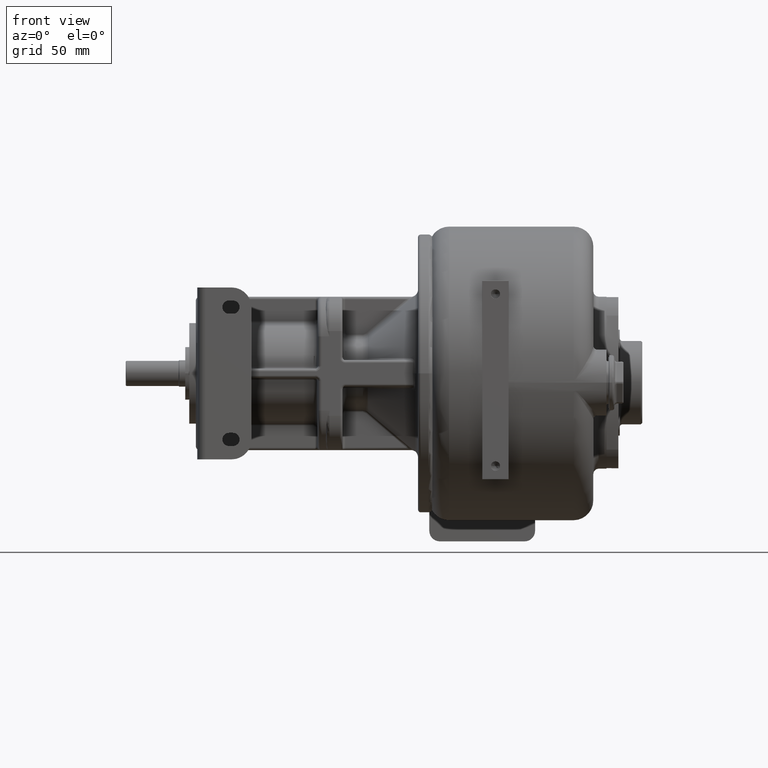
[diagram: clean part render]
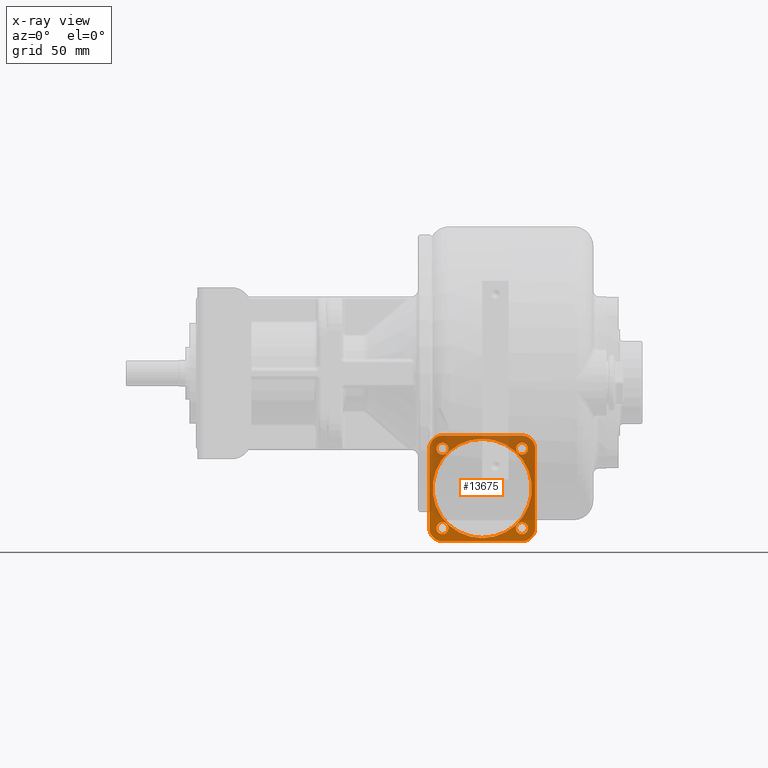
[diagram: x-ray — body ghosted, one internal face saturated and labeled with its STEP entity id]
A machine part, front view, then the same camera in x-ray: the body is ghosted and one INTERNAL B-rep face — a face not visible from any outside direction — is saturated and labeled: STEP entity #13675.
In plain terms, the highlighted planar face has unit normal (0, 1, 0).
Its self-contained STEP definition (entity closure, byte-faithful):
#137=CARTESIAN_POINT('',(2.E1,2.92E2,-5.7E1));
#138=DIRECTION('',(0.E0,1.E0,0.E0));
#139=DIRECTION('',(0.E0,0.E0,1.E0));
#140=AXIS2_PLACEMENT_3D('',#137,#138,#139);
#142=DIRECTION('',(1.E0,0.E0,0.E0));
#143=VECTOR('',#142,6.E1);
#144=CARTESIAN_POINT('',(-4.E1,2.92E2,-4.7E1));
#145=LINE('',#144,#143);
#146=CARTESIAN_POINT('',(-4.E1,2.92E2,-5.7E1));
#147=DIRECTION('',(0.E0,1.E0,0.E0));
#148=DIRECTION('',(-1.E0,0.E0,0.E0));
#149=AXIS2_PLACEMENT_3D('',#146,#147,#148);
#151=DIRECTION('',(0.E0,0.E0,1.E0));
#152=VECTOR('',#151,6.E1);
#153=CARTESIAN_POINT('',(-5.E1,2.92E2,-1.17E2));
#154=LINE('',#153,#152);
#155=CARTESIAN_POINT('',(-4.E1,2.92E2,-1.17E2));
#156=DIRECTION('',(0.E0,1.E0,0.E0));
#157=DIRECTION('',(0.E0,0.E0,-1.E0));
#158=AXIS2_PLACEMENT_3D('',#155,#156,#157);
#160=DIRECTION('',(-1.E0,0.E0,0.E0));
#161=VECTOR('',#160,6.E1);
#162=CARTESIAN_POINT('',(2.E1,2.92E2,-1.27E2));
#163=LINE('',#162,#161);
#164=CARTESIAN_POINT('',(2.E1,2.92E2,-1.17E2));
#165=DIRECTION('',(0.E0,1.E0,0.E0));
#166=DIRECTION('',(1.E0,0.E0,0.E0));
#167=AXIS2_PLACEMENT_3D('',#164,#165,#166);
#169=DIRECTION('',(0.E0,0.E0,-1.E0));
#170=VECTOR('',#169,6.E1);
#171=CARTESIAN_POINT('',(3.E1,2.92E2,-5.7E1));
#172=LINE('',#171,#170);
#173=CARTESIAN_POINT('',(-4.005203820043E1,2.92E2,-5.694796179957E1));
#174=DIRECTION('',(0.E0,-1.E0,0.E0));
#175=DIRECTION('',(1.E0,0.E0,0.E0));
#176=AXIS2_PLACEMENT_3D('',#173,#174,#175);
#178=CARTESIAN_POINT('',(-4.005203820043E1,2.92E2,-5.694796179957E1));
#179=DIRECTION('',(0.E0,-1.E0,0.E0));
#180=DIRECTION('',(-1.E0,0.E0,0.E0));
#181=AXIS2_PLACEMENT_3D('',#178,#179,#180);
#183=CARTESIAN_POINT('',(-4.005203820043E1,2.92E2,-1.170520382004E2));
#184=DIRECTION('',(0.E0,-1.E0,0.E0));
#185=DIRECTION('',(0.E0,0.E0,1.E0));
#186=AXIS2_PLACEMENT_3D('',#183,#184,#185);
#188=CARTESIAN_POINT('',(-4.005203820043E1,2.92E2,-1.170520382004E2));
#189=DIRECTION('',(0.E0,-1.E0,0.E0));
#190=DIRECTION('',(0.E0,0.E0,-1.E0));
#191=AXIS2_PLACEMENT_3D('',#188,#189,#190);
#193=CARTESIAN_POINT('',(2.005203820043E1,2.92E2,-1.170520382004E2));
#194=DIRECTION('',(0.E0,-1.E0,0.E0));
#195=DIRECTION('',(-1.E0,0.E0,0.E0));
#196=AXIS2_PLACEMENT_3D('',#193,#194,#195);
#198=CARTESIAN_POINT('',(2.005203820043E1,2.92E2,-1.170520382004E2));
#199=DIRECTION('',(0.E0,-1.E0,0.E0));
#200=DIRECTION('',(1.E0,0.E0,0.E0));
#201=AXIS2_PLACEMENT_3D('',#198,#199,#200);
#203=CARTESIAN_POINT('',(2.005203820043E1,2.92E2,-5.694796179957E1));
#204=DIRECTION('',(0.E0,-1.E0,0.E0));
#205=DIRECTION('',(0.E0,0.E0,-1.E0));
#206=AXIS2_PLACEMENT_3D('',#203,#204,#205);
#208=CARTESIAN_POINT('',(2.005203820043E1,2.92E2,-5.694796179957E1));
#209=DIRECTION('',(0.E0,-1.E0,0.E0));
#210=DIRECTION('',(0.E0,0.E0,1.E0));
#211=AXIS2_PLACEMENT_3D('',#208,#209,#210);
#213=CARTESIAN_POINT('',(-1.E1,2.92E2,-8.7E1));
#214=DIRECTION('',(0.E0,-1.E0,0.E0));
#215=DIRECTION('',(0.E0,0.E0,1.E0));
#216=AXIS2_PLACEMENT_3D('',#213,#214,#215);
#218=CARTESIAN_POINT('',(-1.E1,2.92E2,-8.7E1));
#219=DIRECTION('',(0.E0,-1.E0,0.E0));
#220=DIRECTION('',(0.E0,0.E0,-1.E0));
#221=AXIS2_PLACEMENT_3D('',#218,#219,#220);
#12553=CARTESIAN_POINT('',(2.E1,2.92E2,-4.7E1));
#12554=CARTESIAN_POINT('',(3.E1,2.92E2,-5.7E1));
#12555=VERTEX_POINT('',#12553);
#12556=VERTEX_POINT('',#12554);
#12557=CARTESIAN_POINT('',(-5.E1,2.92E2,-5.7E1));
#12558=CARTESIAN_POINT('',(-4.E1,2.92E2,-4.7E1));
#12559=VERTEX_POINT('',#12557);
#12560=VERTEX_POINT('',#12558);
#12561=CARTESIAN_POINT('',(3.E1,2.92E2,-1.17E2));
#12562=CARTESIAN_POINT('',(2.E1,2.92E2,-1.27E2));
#12563=VERTEX_POINT('',#12561);
#12564=VERTEX_POINT('',#12562);
#12565=CARTESIAN_POINT('',(-4.E1,2.92E2,-1.27E2));
#12566=VERTEX_POINT('',#12565);
#12567=CARTESIAN_POINT('',(-5.E1,2.92E2,-1.17E2));
#12568=VERTEX_POINT('',#12567);
#12569=CARTESIAN_POINT('',(-3.555203820043E1,2.92E2,-5.694796179957E1));
#12570=CARTESIAN_POINT('',(-4.455203820043E1,2.92E2,-5.694796179957E1));
#12571=VERTEX_POINT('',#12569);
#12572=VERTEX_POINT('',#12570);
#12573=CARTESIAN_POINT('',(-4.005203820043E1,2.92E2,-1.125520382004E2));
#12574=CARTESIAN_POINT('',(-4.005203820043E1,2.92E2,-1.215520382004E2));
#12575=VERTEX_POINT('',#12573);
#12576=VERTEX_POINT('',#12574);
#12577=CARTESIAN_POINT('',(1.555203820043E1,2.92E2,-1.170520382004E2));
#12578=CARTESIAN_POINT('',(2.455203820043E1,2.92E2,-1.170520382004E2));
#12579=VERTEX_POINT('',#12577);
#12580=VERTEX_POINT('',#12578);
#12581=CARTESIAN_POINT('',(2.005203820043E1,2.92E2,-6.144796179957E1));
#12582=CARTESIAN_POINT('',(2.005203820043E1,2.92E2,-5.244796179957E1));
#12583=VERTEX_POINT('',#12581);
#12584=VERTEX_POINT('',#12582);
#12717=CARTESIAN_POINT('',(-1.E1,2.92E2,-4.95E1));
#12718=CARTESIAN_POINT('',(-1.E1,2.92E2,-1.245E2));
#12719=VERTEX_POINT('',#12717);
#12720=VERTEX_POINT('',#12718);
#13630=CARTESIAN_POINT('',(-1.E1,2.92E2,-8.7E1));
#13631=DIRECTION('',(0.E0,1.E0,0.E0));
#13632=DIRECTION('',(-1.E0,0.E0,0.E0));
#13633=AXIS2_PLACEMENT_3D('',#13630,#13631,#13632);
#13634=PLANE('',#13633);
#13635=ORIENTED_EDGE('',*,*,#13604,.F.);
#13636=ORIENTED_EDGE('',*,*,#13617,.F.);
#13637=ORIENTED_EDGE('',*,*,#13450,.F.);
#13638=ORIENTED_EDGE('',*,*,#13466,.F.);
#13639=ORIENTED_EDGE('',*,*,#13502,.F.);
#13640=ORIENTED_EDGE('',*,*,#13517,.F.);
#13641=ORIENTED_EDGE('',*,*,#13553,.F.);
#13642=ORIENTED_EDGE('',*,*,#13568,.F.);
#13643=EDGE_LOOP('',(#13635,#13636,#13637,#13638,#13639,#13640,#13641,#13642));
#13644=FACE_OUTER_BOUND('',#13643,.F.);
#13646=ORIENTED_EDGE('',*,*,#13645,.F.);
#13648=ORIENTED_EDGE('',*,*,#13647,.F.);
#13649=EDGE_LOOP('',(#13646,#13648));
#13650=FACE_BOUND('',#13649,.F.);
#13652=ORIENTED_EDGE('',*,*,#13651,.F.);
#13654=ORIENTED_EDGE('',*,*,#13653,.F.);
#13655=EDGE_LOOP('',(#13652,#13654));
#13656=FACE_BOUND('',#13655,.F.);
#13658=ORIENTED_EDGE('',*,*,#13657,.F.);
#13660=ORIENTED_EDGE('',*,*,#13659,.F.);
#13661=EDGE_LOOP('',(#13658,#13660));
#13662=FACE_BOUND('',#13661,.F.);
#13664=ORIENTED_EDGE('',*,*,#13663,.F.);
#13666=ORIENTED_EDGE('',*,*,#13665,.F.);
#13667=EDGE_LOOP('',(#13664,#13666));
#13668=FACE_BOUND('',#13667,.F.);
#13670=ORIENTED_EDGE('',*,*,#13669,.F.);
#13672=ORIENTED_EDGE('',*,*,#13671,.F.);
#13673=EDGE_LOOP('',(#13670,#13672));
#13674=FACE_BOUND('',#13673,.F.);
#13675=ADVANCED_FACE('',(#13644,#13650,#13656,#13662,#13668,#13674),#13634,.T.);
#141=CIRCLE('',#140,1.E1);
#150=CIRCLE('',#149,1.E1);
#159=CIRCLE('',#158,1.E1);
#168=CIRCLE('',#167,1.E1);
#177=CIRCLE('',#176,4.5E0);
#182=CIRCLE('',#181,4.5E0);
#187=CIRCLE('',#186,4.5E0);
#192=CIRCLE('',#191,4.5E0);
#197=CIRCLE('',#196,4.5E0);
#202=CIRCLE('',#201,4.5E0);
#207=CIRCLE('',#206,4.5E0);
#212=CIRCLE('',#211,4.5E0);
#217=CIRCLE('',#216,3.75E1);
#222=CIRCLE('',#221,3.75E1);
#13450=EDGE_CURVE('',#12559,#12560,#150,.T.);
#13466=EDGE_CURVE('',#12568,#12559,#154,.T.);
#13502=EDGE_CURVE('',#12566,#12568,#159,.T.);
#13517=EDGE_CURVE('',#12564,#12566,#163,.T.);
#13553=EDGE_CURVE('',#12563,#12564,#168,.T.);
#13568=EDGE_CURVE('',#12556,#12563,#172,.T.);
#13604=EDGE_CURVE('',#12555,#12556,#141,.T.);
#13617=EDGE_CURVE('',#12560,#12555,#145,.T.);
#13645=EDGE_CURVE('',#12571,#12572,#177,.T.);
#13647=EDGE_CURVE('',#12572,#12571,#182,.T.);
#13651=EDGE_CURVE('',#12575,#12576,#187,.T.);
#13653=EDGE_CURVE('',#12576,#12575,#192,.T.);
#13657=EDGE_CURVE('',#12579,#12580,#197,.T.);
#13659=EDGE_CURVE('',#12580,#12579,#202,.T.);
#13663=EDGE_CURVE('',#12583,#12584,#207,.T.);
#13665=EDGE_CURVE('',#12584,#12583,#212,.T.);
#13669=EDGE_CURVE('',#12719,#12720,#217,.T.);
#13671=EDGE_CURVE('',#12720,#12719,#222,.T.);